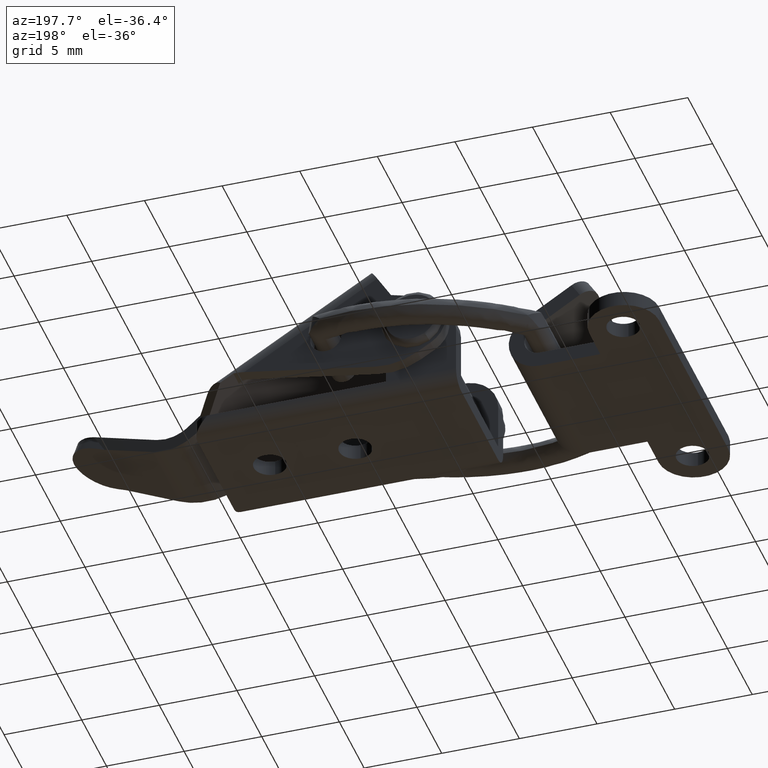
[diagram: clean part render]
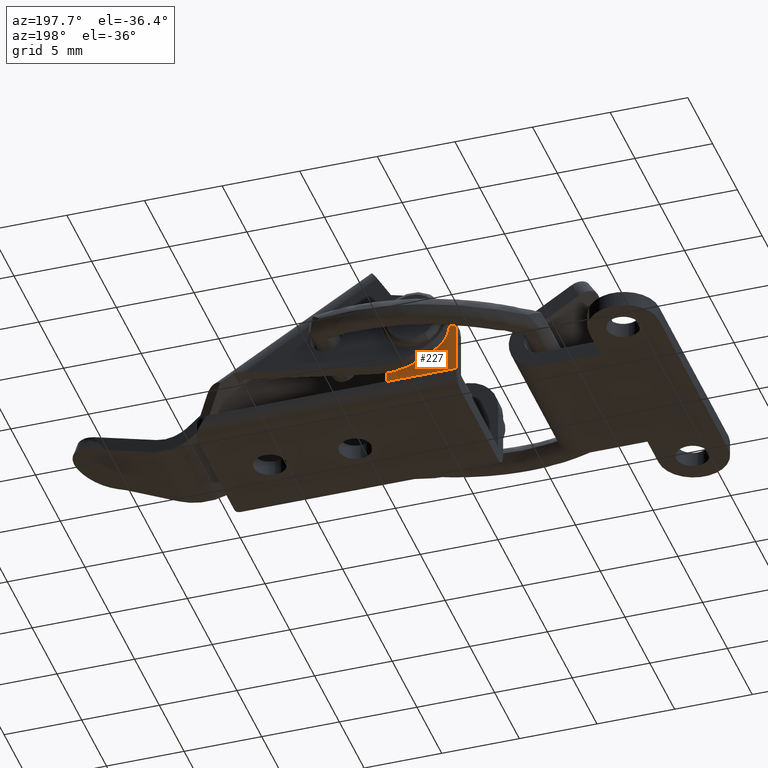
[diagram: same view with one face highlighted and labeled with its STEP entity id]
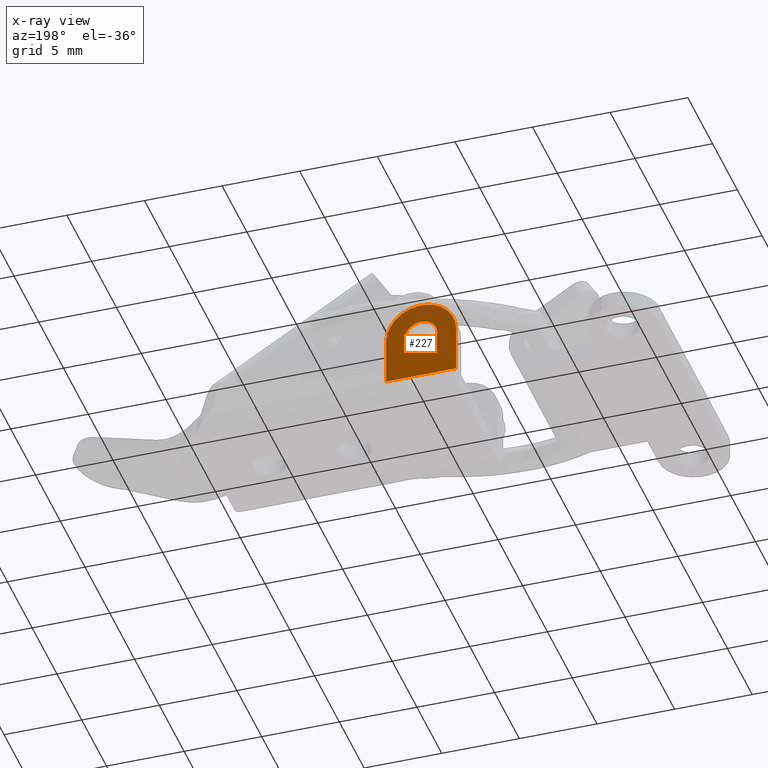
[diagram: x-ray of the same camera — body ghosted, the highlighted face saturated]
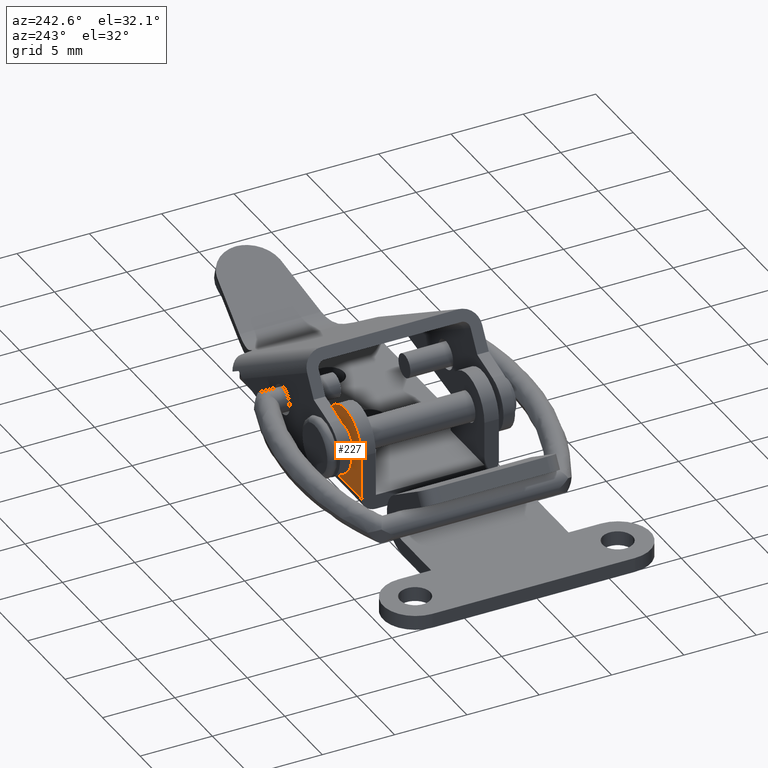
[diagram: same view with one face highlighted and labeled with its STEP entity id]
A machine part, auxiliary view. The second image highlights one B-rep face of the part: STEP entity #227.
The next image is the same camera in x-ray: the body ghosted, the highlighted face saturated — about 11% of this face is hidden behind the body in this view.
A second angle (auxiliary view) of the same face is appended — the face is thin or edge-on in the first view.
In plain terms, the highlighted planar face has unit normal (0, 1, 0).
Its self-contained STEP definition (entity closure, byte-faithful):
#227=ADVANCED_FACE('',(#716,#717),#715,.T.);
#715=PLANE('',#1728);
#716=FACE_OUTER_BOUND('',#1729,.T.);
#717=FACE_BOUND('',#1730,.T.);
#1725=CARTESIAN_POINT('',(-4.50000000000E-01,-6.83000000000E+00,4.75000000000E+00));
#1726=DIRECTION('',(0.00000000000E+00,-0.00000000000E+00,1.00000000000E+00));
#1727=DIRECTION('',(1.00000000000E+00,0.00000000000E+00,0.00000000000E+00));
#1728=AXIS2_PLACEMENT_3D('',#1725,#1726,#1727);
#1729=EDGE_LOOP('',(#2455,#2456,#2457,#2458));
#1730=EDGE_LOOP('',(#2459,#2460));
#2455=ORIENTED_EDGE('',*,*,#2964,.T.);
#2456=ORIENTED_EDGE('',*,*,#2965,.T.);
#2457=ORIENTED_EDGE('',*,*,#2951,.T.);
#2458=ORIENTED_EDGE('',*,*,#2963,.F.);
#2459=ORIENTED_EDGE('',*,*,#2966,.T.);
#2460=ORIENTED_EDGE('',*,*,#2967,.T.);
#2951=EDGE_CURVE('',#3892,#3893,#3894,.T.);
#2963=EDGE_CURVE('',#3969,#3893,#3976,.T.);
#2964=EDGE_CURVE('',#3969,#3982,#3983,.T.);
#2965=EDGE_CURVE('',#3982,#3892,#3989,.T.);
#2966=EDGE_CURVE('',#3995,#3996,#3997,.T.);
#2967=EDGE_CURVE('',#3996,#3995,#4003,.T.);
#3892=VERTEX_POINT('',#5759);
#3893=VERTEX_POINT('',#5760);
#3894=LINE('',#5761,#5762);
#3969=VERTEX_POINT('',#5806);
#3976=CIRCLE('',#5813,2.25000000000E+00);
#3982=VERTEX_POINT('',#5814);
#3983=LINE('',#5815,#5816);
#3989=LINE('',#5818,#5819);
#3995=VERTEX_POINT('',#5821);
#3996=VERTEX_POINT('',#5822);
#3997=CIRCLE('',#5826,1.05000000000E+00);
#4003=CIRCLE('',#5830,1.05000000000E+00);
#5759=CARTESIAN_POINT('',(3.70780032893E-27,-1.00000000000E+00,4.75000000000E+00));
#5760=CARTESIAN_POINT('',(1.42108547152E-14,-4.05000000000E+00,4.75000000000E+00));
#5761=CARTESIAN_POINT('',(3.70764625454E-27,-1.00000000000E+00,4.75000000000E+00));
#5762=VECTOR('',#5763,3.05000000000E+00);
#5763=DIRECTION('',(4.65929662793E-15,-1.00000000000E+00,0.00000000000E+00));
#5806=CARTESIAN_POINT('',(4.50000000000E+00,-4.05000000000E+00,4.75000000000E+00));
#5810=CARTESIAN_POINT('',(2.25000000000E+00,-4.05000000000E+00,4.75000000000E+00));
#5811=DIRECTION('',(0.00000000000E+00,0.00000000000E+00,-1.00000000000E+00));
#5812=DIRECTION('',(-1.00000000000E+00,-0.00000000000E+00,-0.00000000000E+00));
#5813=AXIS2_PLACEMENT_3D('',#5810,#5811,#5812);
#5814=CARTESIAN_POINT('',(4.50000000000E+00,-1.00000000000E+00,4.75000000000E+00));
#5815=CARTESIAN_POINT('',(4.50000000000E+00,-4.05000000000E+00,4.75000000000E+00));
#5816=VECTOR('',#5817,3.05000000000E+00);
#5817=DIRECTION('',(-4.95050266718E-15,1.00000000000E+00,0.00000000000E+00));
#5818=CARTESIAN_POINT('',(4.50000000000E+00,-1.00000000000E+00,4.75000000000E+00));
#5819=VECTOR('',#5820,4.50000000000E+00);
#5820=DIRECTION('',(-1.00000000000E+00,0.00000000000E+00,0.00000000000E+00));
#5821=CARTESIAN_POINT('',(3.30000000000E+00,-4.00000000000E+00,4.75000000000E+00));
#5822=CARTESIAN_POINT('',(1.20000000000E+00,-4.00000000000E+00,4.75000000000E+00));
#5823=CARTESIAN_POINT('',(2.25000000000E+00,-4.00000000000E+00,4.75000000000E+00));
#5824=DIRECTION('',(0.00000000000E+00,0.00000000000E+00,-1.00000000000E+00));
#5825=DIRECTION('',(1.00000000000E+00,-1.22460635382E-16,0.00000000000E+00));
#5826=AXIS2_PLACEMENT_3D('',#5823,#5824,#5825);
#5827=CARTESIAN_POINT('',(2.25000000000E+00,-4.00000000000E+00,4.75000000000E+00));
#5828=DIRECTION('',(0.00000000000E+00,0.00000000000E+00,-1.00000000000E+00));
#5829=DIRECTION('',(1.00000000000E+00,-1.22460635382E-16,0.00000000000E+00));
#5830=AXIS2_PLACEMENT_3D('',#5827,#5828,#5829);